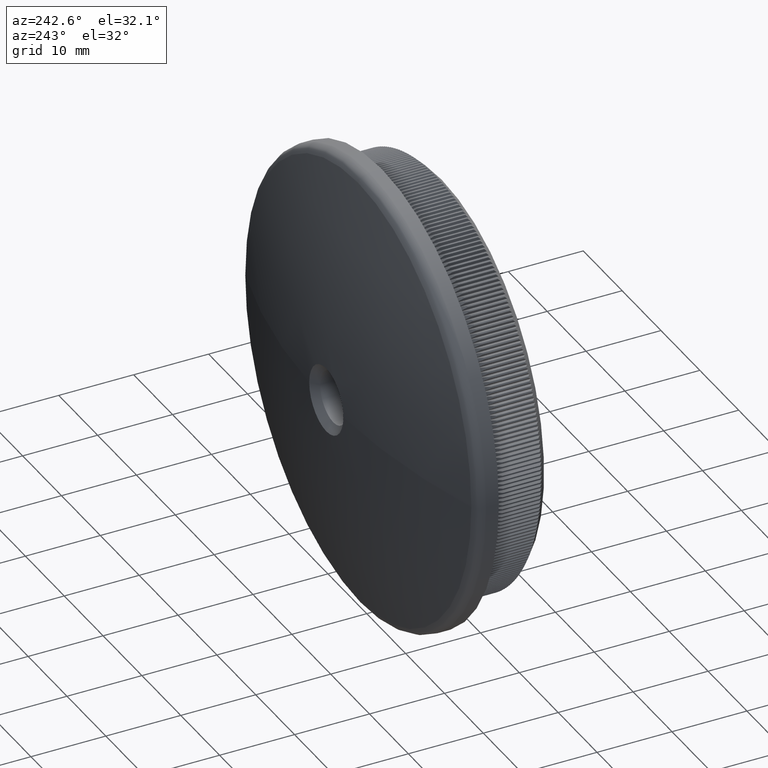
[diagram: clean part render]
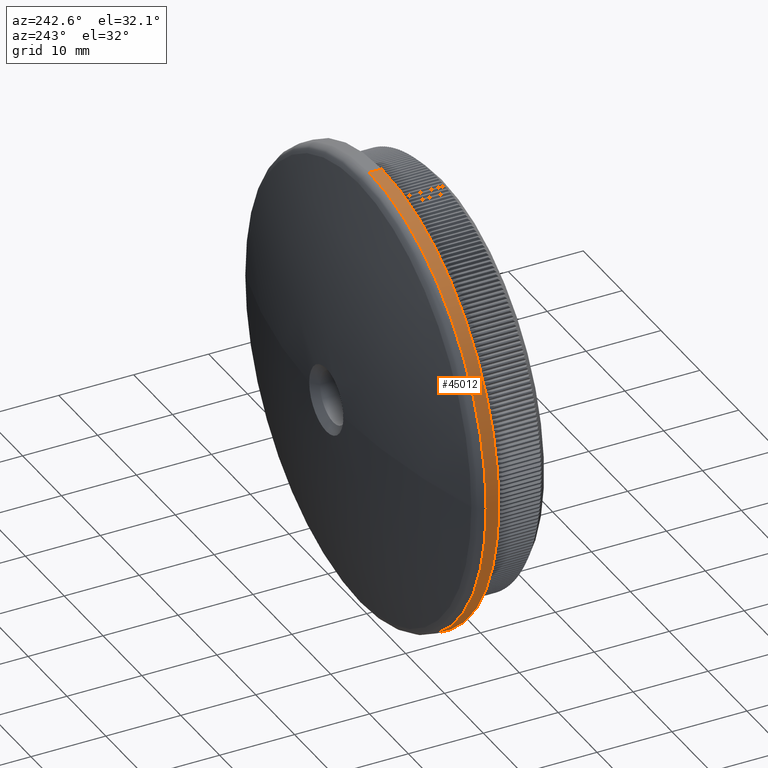
[diagram: same view with one face highlighted and labeled with its STEP entity id]
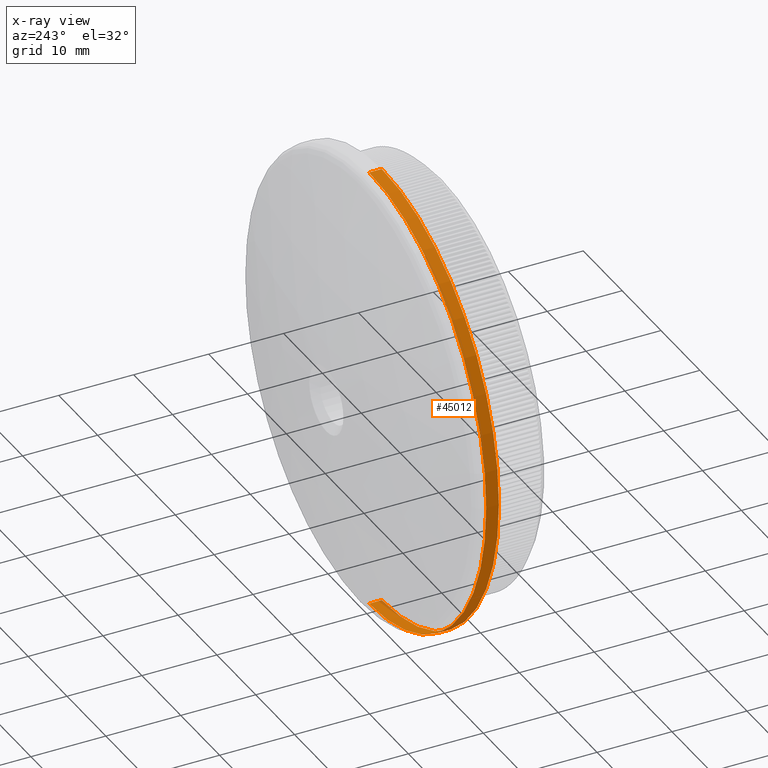
[diagram: x-ray of the same camera — body ghosted, the highlighted face saturated]
A machine part, auxiliary view. The second image highlights one B-rep face of the part: STEP entity #45012.
The next image is the same camera in x-ray: the body ghosted, the highlighted face saturated — about 1% of this face is hidden behind the body in this view.
In plain terms, the highlighted cylindrical surface (partial cylindrical patch) has radius 30.15 mm, axis along (-0, -1, -0).
Its self-contained STEP definition (entity closure, byte-faithful):
#2070 = ORIENTED_EDGE ( 'NONE', *, *, #18318, .T. ) ;
#2725 = VERTEX_POINT ( 'NONE', #38613 ) ;
#2956 = ORIENTED_EDGE ( 'NONE', *, *, #5332, .F. ) ;
#3496 = CARTESIAN_POINT ( 'NONE',  ( 3.692310099429270397E-15, 8.000000000000000000, 30.15000000000000213 ) ) ;
#5332 = EDGE_CURVE ( 'NONE', #17996, #19600, #28992, .T. ) ;
#6646 = DIRECTION ( 'NONE',  ( -0.000000000000000000, -1.000000000000000000, -0.000000000000000000 ) ) ;
#6955 = CARTESIAN_POINT ( 'NONE',  ( 3.692310099429269608E-15, 0.000000000000000000, 30.14999999999999503 ) ) ;
#6975 = CARTESIAN_POINT ( 'NONE',  ( 0.000000000000000000, 8.000000000000000000, -30.14999999999999858 ) ) ;
#7695 = AXIS2_PLACEMENT_3D ( 'NONE', #39736, #32555, #28898 ) ;
#10281 = AXIS2_PLACEMENT_3D ( 'NONE', #27511, #28112, #13730 ) ;
#10325 = EDGE_LOOP ( 'NONE', ( #31690, #14148, #2070, #2956 ) ) ;
#10592 = EDGE_CURVE ( 'NONE', #2725, #17996, #23800, .T. ) ;
#13730 = DIRECTION ( 'NONE',  ( 0.000000000000000000, 0.000000000000000000, -1.000000000000000000 ) ) ;
#14148 = ORIENTED_EDGE ( 'NONE', *, *, #25877, .T. ) ;
#14468 = FACE_OUTER_BOUND ( 'NONE', #10325, .T. ) ;
#17028 = DIRECTION ( 'NONE',  ( -0.000000000000000000, -1.000000000000000000, -0.000000000000000000 ) ) ;
#17166 = CARTESIAN_POINT ( 'NONE',  ( 0.000000000000000000, 0.000000000000000000, -30.14999999999999503 ) ) ;
#17765 = CARTESIAN_POINT ( 'NONE',  ( 0.000000000000000000, 9.698157620612199992, -30.14999999999999503 ) ) ;
#17996 = VERTEX_POINT ( 'NONE', #3496 ) ;
#18318 = EDGE_CURVE ( 'NONE', #37738, #19600, #41710, .T. ) ;
#19600 = VERTEX_POINT ( 'NONE', #6975 ) ;
#19939 = DIRECTION ( 'NONE',  ( -0.000000000000000000, -1.000000000000000000, -0.000000000000000000 ) ) ;
#21612 = VECTOR ( 'NONE', #17028, 1000.000000000000000 ) ;
#22189 = CYLINDRICAL_SURFACE ( 'NONE', #7695, 30.14999999999999503 ) ;
#23800 = LINE ( 'NONE', #6955, #21612 ) ;
#25877 = EDGE_CURVE ( 'NONE', #2725, #37738, #37472, .T. ) ;
#27511 = CARTESIAN_POINT ( 'NONE',  ( 0.000000000000000000, 9.698157620612199992, 0.000000000000000000 ) ) ;
#28112 = DIRECTION ( 'NONE',  ( -0.000000000000000000, -1.000000000000000000, -0.000000000000000000 ) ) ;
#28898 = DIRECTION ( 'NONE',  ( 0.000000000000000000, 0.000000000000000000, -1.000000000000000000 ) ) ;
#28992 = CIRCLE ( 'NONE', #41680, 30.14999999999999858 ) ;
#31690 = ORIENTED_EDGE ( 'NONE', *, *, #10592, .F. ) ;
#32555 = DIRECTION ( 'NONE',  ( -0.000000000000000000, -1.000000000000000000, -0.000000000000000000 ) ) ;
#33363 = CARTESIAN_POINT ( 'NONE',  ( 0.000000000000000000, 8.000000000000000000, 0.000000000000000000 ) ) ;
#33504 = VECTOR ( 'NONE', #6646, 1000.000000000000000 ) ;
#33516 = DIRECTION ( 'NONE',  ( 0.000000000000000000, 0.000000000000000000, -1.000000000000000000 ) ) ;
#37472 = CIRCLE ( 'NONE', #10281, 30.14999999999999503 ) ;
#37738 = VERTEX_POINT ( 'NONE', #17765 ) ;
#38613 = CARTESIAN_POINT ( 'NONE',  ( 3.692310099429269608E-15, 9.698157620612199992, 30.14999999999999503 ) ) ;
#39736 = CARTESIAN_POINT ( 'NONE',  ( 0.000000000000000000, 0.000000000000000000, 0.000000000000000000 ) ) ;
#41680 = AXIS2_PLACEMENT_3D ( 'NONE', #33363, #19939, #33516 ) ;
#41710 = LINE ( 'NONE', #17166, #33504 ) ;
#45012 = ADVANCED_FACE ( 'NONE', ( #14468 ), #22189, .T. ) ;